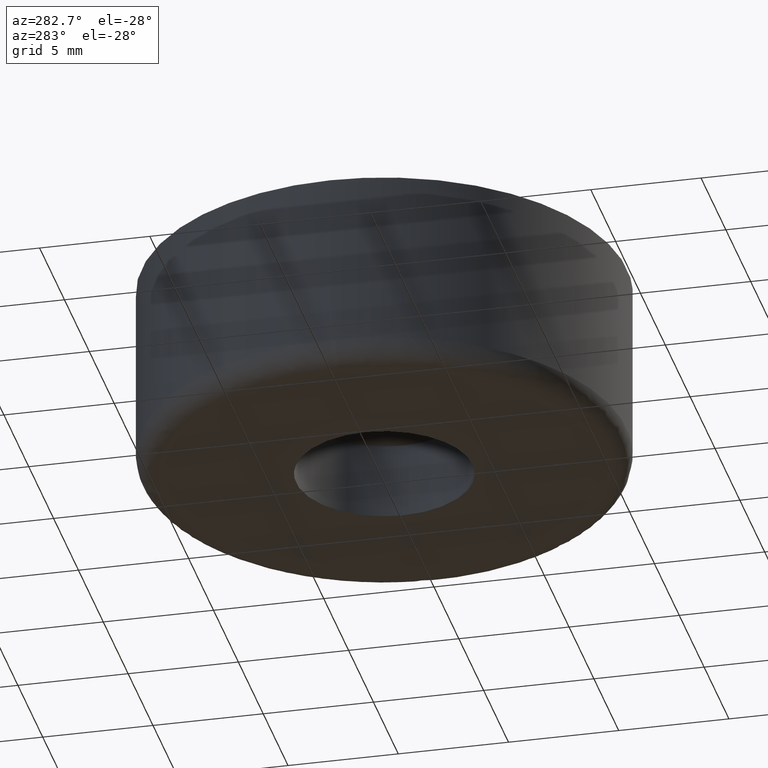
[diagram: clean part render]
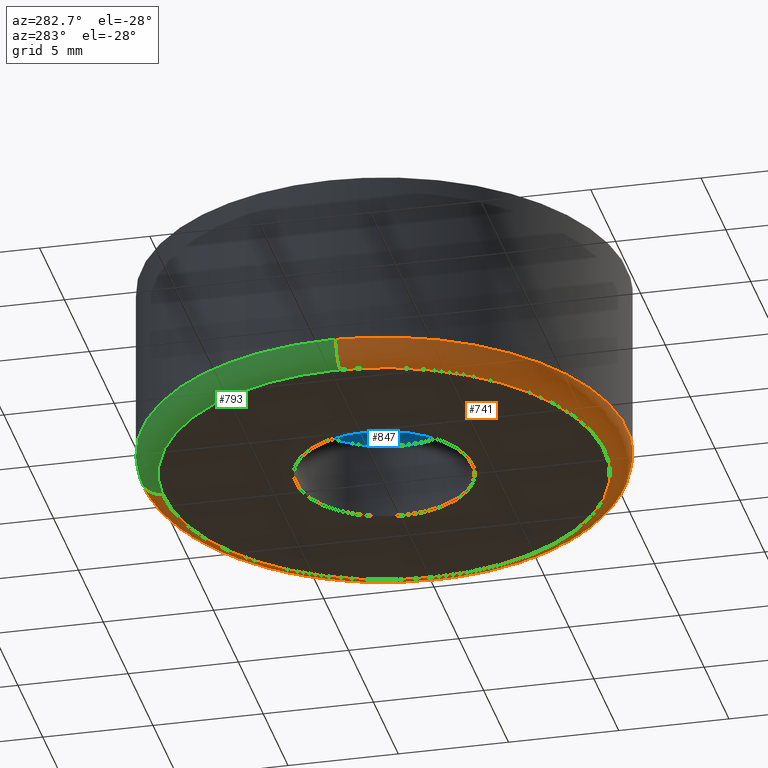
[diagram: same view with three faces highlighted in distinct colors, each labeled with its STEP entity id]
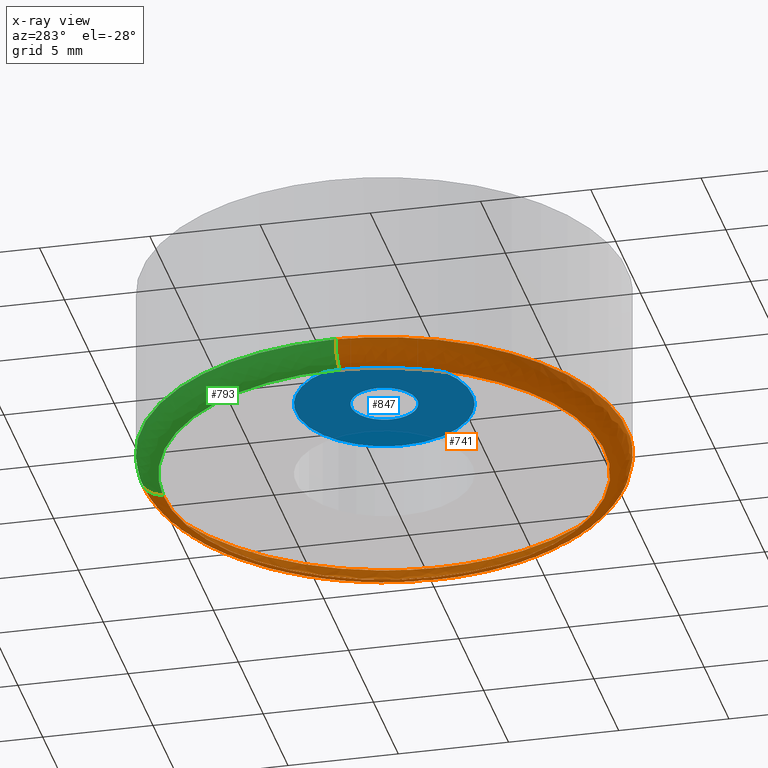
[diagram: x-ray of the same camera — body ghosted, the three highlighted faces saturated]
A machine part, auxiliary view with three faces highlighted in distinct colors.
The next image is the same camera in x-ray (body ghosted, the three faces saturated) — at least one of them is partly hidden behind the body in this view.
Their STEP definitions:

[orange] entity #741 — the highlighted face is a freeform B-spline surface patch.
#62=CARTESIAN_POINT('',(10.735658999564700,-2.397003513767527,0.999999999999981));
#63=VERTEX_POINT('',#62);
#64=CARTESIAN_POINT('',(0.863043667407032,-10.966091173618230,1.000000000000017));
#65=VERTEX_POINT('',#64);
#66=CARTESIAN_POINT('',(10.735658999564698,-2.397003513767527,0.999999999999981));
#67=CARTESIAN_POINT('',(8.964759803320055,-10.328477032398068,1.0));
#68=CARTESIAN_POINT('',(0.863043667407032,-10.966091173618224,1.000000000000017));
#76=(BOUNDED_CURVE()B_SPLINE_CURVE(2,(#66,#67,#68),.UNSPECIFIED.,.F.,.U.)B_SPLINE_CURVE_WITH_KNOTS((3,3),(0.537286560370751,0.736331400453952),.UNSPECIFIED.)CURVE()GEOMETRIC_REPRESENTATION_ITEM()RATIONAL_B_SPLINE_CURVE((0.925662740296602,0.762027680026814,0.969723564491107))REPRESENTATION_ITEM(''));
#77=EDGE_CURVE('',#63,#65,#76,.T.);
#135=CARTESIAN_POINT('',(11.0,0.0,1.0));
#136=VERTEX_POINT('',#135);
#137=CARTESIAN_POINT('',(11.0,0.0,1.0));
#138=CARTESIAN_POINT('',(11.000000000000005,-1.213077489482777,1.0));
#139=CARTESIAN_POINT('',(10.735658999564697,-2.397003513767527,0.999999999999981));
#147=(BOUNDED_CURVE()B_SPLINE_CURVE(2,(#137,#138,#139),.UNSPECIFIED.,.F.,.U.)B_SPLINE_CURVE_WITH_KNOTS((3,3),(0.500000000000000,0.537286560370751),.UNSPECIFIED.)CURVE()GEOMETRIC_REPRESENTATION_ITEM()RATIONAL_B_SPLINE_CURVE((1.0,0.956316077258115,0.925662740296602))REPRESENTATION_ITEM(''));
#148=EDGE_CURVE('',#136,#63,#147,.T.);
#150=CARTESIAN_POINT('',(-0.276431049877462,10.996526082116279,0.999999999897399));
#151=VERTEX_POINT('',#150);
#152=CARTESIAN_POINT('',(-0.276431049877462,10.996526082116279,0.999999999897399));
#153=CARTESIAN_POINT('',(-0.138237353357926,11.000000000000004,1.0));
#154=CARTESIAN_POINT('',(0.0,11.0,1.0));
#155=CARTESIAN_POINT('',(11.0,11.0,1.0));
#156=CARTESIAN_POINT('',(11.0,0.0,1.0));
#164=(BOUNDED_CURVE()B_SPLINE_CURVE(2,(#152,#153,#154,#155,#156),.UNSPECIFIED.,.F.,.U.)B_SPLINE_CURVE_WITH_KNOTS((3,2,3),(0.245579891769784,0.250000000000000,0.500000000000000),.UNSPECIFIED.)CURVE()GEOMETRIC_REPRESENTATION_ITEM()RATIONAL_B_SPLINE_CURVE((0.989826157681522,0.994821521091792,1.0,0.707106781186548,1.0))REPRESENTATION_ITEM(''));
#165=EDGE_CURVE('',#151,#136,#164,.T.);
#182=CARTESIAN_POINT('',(-10.996526082116279,-0.276431049877210,0.999999999897420));
#183=VERTEX_POINT('',#182);
#197=CARTESIAN_POINT('',(0.863043667407032,-10.966091173618224,1.000000000000017));
#198=CARTESIAN_POINT('',(0.432187969468142,-11.000000000000002,1.0));
#199=CARTESIAN_POINT('',(0.0,-11.0,1.0));
#200=CARTESIAN_POINT('',(-10.726956637986108,-11.000000000000004,1.0));
#201=CARTESIAN_POINT('',(-10.996526082116283,-0.276431049877210,0.999999999897420));
#209=(BOUNDED_CURVE()B_SPLINE_CURVE(2,(#197,#198,#199,#200,#201),.UNSPECIFIED.,.F.,.U.)B_SPLINE_CURVE_WITH_KNOTS((3,2,3),(0.736331400453952,0.750000000000000,0.995579891769791),.UNSPECIFIED.)CURVE()GEOMETRIC_REPRESENTATION_ITEM()RATIONAL_B_SPLINE_CURVE((0.969723564491107,0.983986239529144,1.0,0.712285260094747,0.989826157681538))REPRESENTATION_ITEM(''));
#210=EDGE_CURVE('',#65,#183,#209,.T.);
#644=CARTESIAN_POINT('',(-0.276369890915477,10.994093156753253,1.069724206937739));
#645=CARTESIAN_POINT('',(10.717723265837780,11.270463047668732,1.069724206937739));
#646=CARTESIAN_POINT('',(10.994093156753253,0.276369890915478,1.069724206937739));
#647=CARTESIAN_POINT('',(11.270463047668734,-10.717723265837776,1.069724206937739));
#648=CARTESIAN_POINT('',(0.276369890915481,-10.994093156753253,1.069724206937739));
#649=CARTESIAN_POINT('',(-10.717723265837776,-11.270463047668734,1.069724206937739));
#650=CARTESIAN_POINT('',(-10.994093156753253,-0.276369890915481,1.069724206937739));
#651=CARTESIAN_POINT('',(-0.278384645946548,11.074240832848719,-0.077336226805050));
#652=CARTESIAN_POINT('',(10.795856186902176,11.352625478795273,-0.077336226805050));
#653=CARTESIAN_POINT('',(11.074240832848719,0.278384645946549,-0.077336226805050));
#654=CARTESIAN_POINT('',(11.352625478795273,-10.795856186902171,-0.077336226805050));
#655=CARTESIAN_POINT('',(0.278384645946552,-11.074240832848719,-0.077336226805050));
#656=CARTESIAN_POINT('',(-10.795856186902171,-11.352625478795273,-0.077336226805050));
#657=CARTESIAN_POINT('',(-11.074240832848719,-0.278384645946552,-0.077336226805050));
#658=CARTESIAN_POINT('',(-0.249558156124175,9.927512752450511,0.002407681992349));
#659=CARTESIAN_POINT('',(9.677954596326334,10.177070908574683,0.002407681992349));
#660=CARTESIAN_POINT('',(9.927512752450511,0.249558156124176,0.002407681992349));
#661=CARTESIAN_POINT('',(10.177070908574688,-9.677954596326332,0.002407681992349));
#662=CARTESIAN_POINT('',(0.249558156124179,-9.927512752450511,0.002407681992349));
#663=CARTESIAN_POINT('',(-9.677954596326332,-10.177070908574688,0.002407681992349));
#664=CARTESIAN_POINT('',(-9.927512752450511,-0.249558156124179,0.002407681992349));
#672=(BOUNDED_SURFACE()B_SPLINE_SURFACE(2,2,((#644,#651,#658),(#645,#652,#659),(#646,#653,#660),(#647,#654,#661),(#648,#655,#662),(#649,#656,#663),(#650,#657,#664)),.UNSPECIFIED.,.F.,.F.,.U.)B_SPLINE_SURFACE_WITH_KNOTS((3,2,2,3),(3,3),(0.0,18.221364468253700,36.442728936507407,54.664093404761111),(0.0,1.822370918624830),.UNSPECIFIED.)GEOMETRIC_REPRESENTATION_ITEM()RATIONAL_B_SPLINE_SURFACE(((0.910892950627466,0.599412832290527,0.915966818727494),(0.644098582323704,0.423848878442866,0.647686348864080),(0.910892950627466,0.599412832290527,0.915966818727494),(0.644098582323704,0.423848878442866,0.647686348864080),(0.910892950627466,0.599412832290527,0.915966818727494),(0.644098582323704,0.423848878442866,0.647686348864080),(0.910892950627466,0.599412832290527,0.915966818727494)))REPRESENTATION_ITEM('')SURFACE());
#673=CARTESIAN_POINT('',(-0.251300954478001,9.996841893394862,1.718108E-016));
#674=VERTEX_POINT('',#673);
#675=CARTESIAN_POINT('',(10.0,0.0,0.0));
#676=VERTEX_POINT('',#675);
#677=CARTESIAN_POINT('',(-0.251300954478001,9.996841893394862,1.718108E-016));
#678=CARTESIAN_POINT('',(-0.125670321264293,10.000000000000002,0.0));
#679=CARTESIAN_POINT('',(0.0,10.0,0.0));
#680=CARTESIAN_POINT('',(10.000000000000002,10.000000000000002,0.0));
#681=CARTESIAN_POINT('',(10.0,0.0,0.0));
#689=(BOUNDED_CURVE()B_SPLINE_CURVE(2,(#677,#678,#679,#680,#681),.UNSPECIFIED.,.F.,.U.)B_SPLINE_CURVE_WITH_KNOTS((3,2,3),(0.245579891768740,0.250000000000000,0.500000000000000),.UNSPECIFIED.)CURVE()GEOMETRIC_REPRESENTATION_ITEM()RATIONAL_B_SPLINE_CURVE((0.989826157679164,0.994821521090570,1.0,0.707106781186548,1.0))REPRESENTATION_ITEM(''));
#690=EDGE_CURVE('',#674,#676,#689,.T.);
#691=ORIENTED_EDGE('',*,*,#690,.F.);
#692=CARTESIAN_POINT('',(-0.276431049877462,10.996526082116279,0.999999999897399));
#693=CARTESIAN_POINT('',(-0.276431049871556,10.996526081911156,1.125614E-009));
#694=CARTESIAN_POINT('',(-0.251300954478001,9.996841893394862,1.718108E-016));
#702=(BOUNDED_CURVE()B_SPLINE_CURVE(2,(#692,#693,#694),.UNSPECIFIED.,.F.,.U.)B_SPLINE_CURVE_WITH_KNOTS((3,3),(-1.723441281773494,-0.263586880092799),.UNSPECIFIED.)CURVE()GEOMETRIC_REPRESENTATION_ITEM()RATIONAL_B_SPLINE_CURVE((0.883897567064202,0.626638727480732,0.888510408644601))REPRESENTATION_ITEM(''));
#703=EDGE_CURVE('',#151,#674,#702,.T.);
#704=ORIENTED_EDGE('',*,*,#703,.F.);
#705=ORIENTED_EDGE('',*,*,#165,.T.);
#706=ORIENTED_EDGE('',*,*,#148,.T.);
#707=ORIENTED_EDGE('',*,*,#77,.T.);
#708=ORIENTED_EDGE('',*,*,#210,.T.);
#709=CARTESIAN_POINT('',(-9.996841893421046,-0.251300954480380,1.874299E-016));
#710=VERTEX_POINT('',#709);
#711=CARTESIAN_POINT('',(-10.996526082116283,-0.276431049877210,0.999999999897420));
#712=CARTESIAN_POINT('',(-10.996526081911201,-0.276431049871555,1.178090E-009));
#713=CARTESIAN_POINT('',(-9.996841893421046,-0.251300954480380,1.874299E-016));
#721=(BOUNDED_CURVE()B_SPLINE_CURVE(2,(#711,#712,#713),.UNSPECIFIED.,.F.,.U.)B_SPLINE_CURVE_WITH_KNOTS((3,3),(-1.723441281773539,-0.263586880147109),.UNSPECIFIED.)CURVE()GEOMETRIC_REPRESENTATION_ITEM()RATIONAL_B_SPLINE_CURVE((0.883897567064218,0.626638727490295,0.888510408625117))REPRESENTATION_ITEM(''));
#722=EDGE_CURVE('',#183,#710,#721,.T.);
#723=ORIENTED_EDGE('',*,*,#722,.T.);
#724=CARTESIAN_POINT('',(10.0,0.0,0.0));
#725=CARTESIAN_POINT('',(10.000000000000002,-10.000000000000002,0.0));
#726=CARTESIAN_POINT('',(0.0,-10.0,0.0));
#727=CARTESIAN_POINT('',(-9.751778761743656,-10.0,0.0));
#728=CARTESIAN_POINT('',(-9.996841893421046,-0.251300954480380,1.874299E-016));
#736=(BOUNDED_CURVE()B_SPLINE_CURVE(2,(#724,#725,#726,#727,#728),.UNSPECIFIED.,.F.,.U.)B_SPLINE_CURVE_WITH_KNOTS((3,2,3),(0.500000000000000,0.750000000000000,0.995579891768680),.UNSPECIFIED.)CURVE()GEOMETRIC_REPRESENTATION_ITEM()RATIONAL_B_SPLINE_CURVE((1.0,0.707106781186548,1.0,0.712285260096048,0.989826157679029))REPRESENTATION_ITEM(''));
#737=EDGE_CURVE('',#676,#710,#736,.T.);
#738=ORIENTED_EDGE('',*,*,#737,.F.);
#739=EDGE_LOOP('',(#691,#704,#705,#706,#707,#708,#723,#738));
#740=FACE_OUTER_BOUND('',#739,.T.);
#741=ADVANCED_FACE('',(#740),#672,.T.);

[blue] entity #847 — the highlighted face is a freeform B-spline surface patch.
#305=CARTESIAN_POINT('',(-0.177049180233215,1.489514547687925,3.500000000000001));
#306=VERTEX_POINT('',#305);
#312=CARTESIAN_POINT('',(1.500000000000000,0.0,3.500000000000000));
#313=VERTEX_POINT('',#312);
#314=CARTESIAN_POINT('',(-0.177049180233215,1.489514547687925,3.500000000000000));
#315=CARTESIAN_POINT('',(-0.088835082122399,1.500000000000000,3.500000000000000));
#316=CARTESIAN_POINT('',(0.0,1.500000000000000,3.500000000000000));
#317=CARTESIAN_POINT('',(1.500000000000000,1.500000000000000,3.499999999999999));
#318=CARTESIAN_POINT('',(1.500000000000000,0.0,3.500000000000000));
#326=(BOUNDED_CURVE()B_SPLINE_CURVE(2,(#314,#315,#316,#317,#318),.UNSPECIFIED.,.F.,.U.)B_SPLINE_CURVE_WITH_KNOTS((3,2,3),(0.229562719926951,0.250000000000000,0.500000000000000),.UNSPECIFIED.)CURVE()GEOMETRIC_REPRESENTATION_ITEM()RATIONAL_B_SPLINE_CURVE((0.956027237164700,0.976056237022451,1.0,0.707106781186548,1.0))REPRESENTATION_ITEM(''));
#327=EDGE_CURVE('',#306,#313,#326,.T.);
#329=CARTESIAN_POINT('',(0.091572809312635,-1.497202197632167,3.500000000000000));
#330=VERTEX_POINT('',#329);
#331=CARTESIAN_POINT('',(1.500000000000000,0.0,3.500000000000000));
#332=CARTESIAN_POINT('',(1.500000000000001,-1.411059100338994,3.500000000000000));
#333=CARTESIAN_POINT('',(0.091572809312635,-1.497202197632167,3.500000000000000));
#341=(BOUNDED_CURVE()B_SPLINE_CURVE(2,(#331,#332,#333),.UNSPECIFIED.,.F.,.U.)B_SPLINE_CURVE_WITH_KNOTS((3,3),(0.500000000000000,0.739332962239582),.UNSPECIFIED.)CURVE()GEOMETRIC_REPRESENTATION_ITEM()RATIONAL_B_SPLINE_CURVE((1.0,0.719603993285961,0.976072041668088))REPRESENTATION_ITEM(''));
#342=EDGE_CURVE('',#313,#330,#341,.T.);
#420=CARTESIAN_POINT('',(-1.500000000000000,0.0,3.500000000000000));
#421=VERTEX_POINT('',#420);
#422=CARTESIAN_POINT('',(0.091572809312635,-1.497202197632167,3.500000000000000));
#423=CARTESIAN_POINT('',(0.045829144958262,-1.500000000000001,3.500000000000000));
#424=CARTESIAN_POINT('',(0.0,-1.500000000000000,3.500000000000000));
#425=CARTESIAN_POINT('',(-1.500000000000000,-1.500000000000000,3.499999999999999));
#426=CARTESIAN_POINT('',(-1.500000000000000,0.0,3.500000000000000));
#434=(BOUNDED_CURVE()B_SPLINE_CURVE(2,(#422,#423,#424,#425,#426),.UNSPECIFIED.,.F.,.U.)B_SPLINE_CURVE_WITH_KNOTS((3,2,3),(0.739332962239583,0.750000000000000,1.0),.UNSPECIFIED.)CURVE()GEOMETRIC_REPRESENTATION_ITEM()RATIONAL_B_SPLINE_CURVE((0.976072041668089,0.987502787900587,1.0,0.707106781186548,1.0))REPRESENTATION_ITEM(''));
#435=EDGE_CURVE('',#330,#421,#434,.T.);
#437=CARTESIAN_POINT('',(-1.500000000000000,0.0,3.500000000000000));
#438=CARTESIAN_POINT('',(-1.500000000000000,1.332263745075924,3.500000000000000));
#439=CARTESIAN_POINT('',(-0.177049180233215,1.489514547687925,3.500000000000000));
#447=(BOUNDED_CURVE()B_SPLINE_CURVE(2,(#437,#438,#439),.UNSPECIFIED.,.F.,.U.)B_SPLINE_CURVE_WITH_KNOTS((3,3),(0.0,0.229562719926951),.UNSPECIFIED.)CURVE()GEOMETRIC_REPRESENTATION_ITEM()RATIONAL_B_SPLINE_CURVE((1.0,0.731050544164097,0.956027237164700))REPRESENTATION_ITEM(''));
#448=EDGE_CURVE('',#421,#306,#447,.T.);
#514=CARTESIAN_POINT('',(0.244188342415201,-3.992539549383896,3.500000000000000));
#515=VERTEX_POINT('',#514);
#521=CARTESIAN_POINT('',(4.0,0.0,3.500000000000000));
#522=VERTEX_POINT('',#521);
#523=CARTESIAN_POINT('',(4.0,0.0,3.500000000000000));
#524=CARTESIAN_POINT('',(4.000000000000001,-3.762829758978972,3.500000000000000));
#525=CARTESIAN_POINT('',(0.244188342415201,-3.992539549383895,3.500000000000000));
#533=(BOUNDED_CURVE()B_SPLINE_CURVE(2,(#523,#524,#525),.UNSPECIFIED.,.F.,.U.)B_SPLINE_CURVE_WITH_KNOTS((3,3),(0.500000000000000,0.739333213581951),.UNSPECIFIED.)CURVE()GEOMETRIC_REPRESENTATION_ITEM()RATIONAL_B_SPLINE_CURVE((1.0,0.719603698820059,0.976072580343222))REPRESENTATION_ITEM(''));
#534=EDGE_CURVE('',#522,#515,#533,.T.);
#536=CARTESIAN_POINT('',(-0.472135428042880,3.972038285009908,3.500000000000000));
#537=VERTEX_POINT('',#536);
#538=CARTESIAN_POINT('',(-0.472135428042880,3.972038285009907,3.500000000000000));
#539=CARTESIAN_POINT('',(-0.236895715330755,4.0,3.500000000000000));
#540=CARTESIAN_POINT('',(0.0,4.0,3.500000000000000));
#541=CARTESIAN_POINT('',(4.000000000000000,4.000000000000000,3.499999999999999));
#542=CARTESIAN_POINT('',(4.0,0.0,3.500000000000000));
#550=(BOUNDED_CURVE()B_SPLINE_CURVE(2,(#538,#539,#540,#541,#542),.UNSPECIFIED.,.F.,.U.)B_SPLINE_CURVE_WITH_KNOTS((3,2,3),(0.229562537788350,0.250000000000000,0.500000000000000),.UNSPECIFIED.)CURVE()GEOMETRIC_REPRESENTATION_ITEM()RATIONAL_B_SPLINE_CURVE((0.956026880165058,0.976056023633806,1.0,0.707106781186548,1.0))REPRESENTATION_ITEM(''));
#551=EDGE_CURVE('',#537,#522,#550,.T.);
#595=CARTESIAN_POINT('',(-4.0,0.0,3.500000000000000));
#596=VERTEX_POINT('',#595);
#597=CARTESIAN_POINT('',(-4.0,0.0,3.500000000000000));
#598=CARTESIAN_POINT('',(-4.0,3.552699464424252,3.500000000000000));
#599=CARTESIAN_POINT('',(-0.472135428042880,3.972038285009907,3.500000000000000));
#607=(BOUNDED_CURVE()B_SPLINE_CURVE(2,(#597,#598,#599),.UNSPECIFIED.,.F.,.U.)B_SPLINE_CURVE_WITH_KNOTS((3,3),(0.0,0.229562537788350),.UNSPECIFIED.)CURVE()GEOMETRIC_REPRESENTATION_ITEM()RATIONAL_B_SPLINE_CURVE((1.0,0.731050757552741,0.956026880165058))REPRESENTATION_ITEM(''));
#608=EDGE_CURVE('',#596,#537,#607,.T.);
#610=CARTESIAN_POINT('',(0.244188342415201,-3.992539549383895,3.500000000000000));
#611=CARTESIAN_POINT('',(0.122208137179204,-4.000000000000001,3.500000000000000));
#612=CARTESIAN_POINT('',(0.0,-4.0,3.500000000000000));
#613=CARTESIAN_POINT('',(-4.000000000000000,-4.000000000000000,3.499999999999999));
#614=CARTESIAN_POINT('',(-4.0,0.0,3.500000000000000));
#622=(BOUNDED_CURVE()B_SPLINE_CURVE(2,(#610,#611,#612,#613,#614),.UNSPECIFIED.,.F.,.U.)B_SPLINE_CURVE_WITH_KNOTS((3,2,3),(0.739333213581951,0.750000000000000,1.0),.UNSPECIFIED.)CURVE()GEOMETRIC_REPRESENTATION_ITEM()RATIONAL_B_SPLINE_CURVE((0.976072580343222,0.987503082366489,1.0,0.707106781186548,1.0))REPRESENTATION_ITEM(''));
#623=EDGE_CURVE('',#515,#596,#622,.T.);
#830=CARTESIAN_POINT('',(-4.399599984494448,-4.399502853344670,3.500000000000000));
#831=CARTESIAN_POINT('',(4.399600199071169,-4.399502853344670,3.500000000000000));
#832=CARTESIAN_POINT('',(-4.399599984494448,4.399527243565313,3.500000000000000));
#833=CARTESIAN_POINT('',(4.399600199071169,4.399527243565313,3.500000000000000));
#834=B_SPLINE_SURFACE_WITH_KNOTS('',1,1,((#830,#832),(#831,#833)),.UNSPECIFIED.,.F.,.F.,.U.,(2,2),(2,2),(0.0,8.799200183565617),(0.0,8.799030096909982),.UNSPECIFIED.);
#835=ORIENTED_EDGE('',*,*,#608,.T.);
#836=ORIENTED_EDGE('',*,*,#551,.T.);
#837=ORIENTED_EDGE('',*,*,#534,.T.);
#838=ORIENTED_EDGE('',*,*,#623,.T.);
#839=EDGE_LOOP('',(#835,#836,#837,#838));
#840=FACE_OUTER_BOUND('',#839,.T.);
#841=ORIENTED_EDGE('',*,*,#342,.F.);
#842=ORIENTED_EDGE('',*,*,#327,.F.);
#843=ORIENTED_EDGE('',*,*,#448,.F.);
#844=ORIENTED_EDGE('',*,*,#435,.F.);
#845=EDGE_LOOP('',(#841,#842,#843,#844));
#846=FACE_BOUND('',#845,.T.);
#847=ADVANCED_FACE('',(#840,#846),#834,.F.);

[green] entity #793 — the highlighted face is a freeform B-spline surface patch.
#150=CARTESIAN_POINT('',(-0.276431049877462,10.996526082116279,0.999999999897399));
#151=VERTEX_POINT('',#150);
#167=CARTESIAN_POINT('',(-11.0,0.0,1.0));
#168=VERTEX_POINT('',#167);
#169=CARTESIAN_POINT('',(-11.0,0.0,1.0));
#170=CARTESIAN_POINT('',(-11.0,10.726956637985680,1.0));
#171=CARTESIAN_POINT('',(-0.276431049877462,10.996526082116279,0.999999999897399));
#179=(BOUNDED_CURVE()B_SPLINE_CURVE(2,(#169,#170,#171),.UNSPECIFIED.,.F.,.U.)B_SPLINE_CURVE_WITH_KNOTS((3,3),(0.0,0.245579891769784),.UNSPECIFIED.)CURVE()GEOMETRIC_REPRESENTATION_ITEM()RATIONAL_B_SPLINE_CURVE((1.0,0.712285260094755,0.989826157681522))REPRESENTATION_ITEM(''));
#180=EDGE_CURVE('',#168,#151,#179,.T.);
#182=CARTESIAN_POINT('',(-10.996526082116279,-0.276431049877210,0.999999999897420));
#183=VERTEX_POINT('',#182);
#184=CARTESIAN_POINT('',(-10.996526082116281,-0.276431049877210,0.999999999897420));
#185=CARTESIAN_POINT('',(-11.0,-0.138237353357674,1.0));
#186=CARTESIAN_POINT('',(-11.0,0.0,1.0));
#194=(BOUNDED_CURVE()B_SPLINE_CURVE(2,(#184,#185,#186),.UNSPECIFIED.,.F.,.U.)B_SPLINE_CURVE_WITH_KNOTS((3,3),(0.995579891769792,1.0),.UNSPECIFIED.)CURVE()GEOMETRIC_REPRESENTATION_ITEM()RATIONAL_B_SPLINE_CURVE((0.989826157681540,0.994821521091802,1.0))REPRESENTATION_ITEM(''));
#195=EDGE_CURVE('',#183,#168,#194,.T.);
#673=CARTESIAN_POINT('',(-0.251300954478001,9.996841893394862,1.718108E-016));
#674=VERTEX_POINT('',#673);
#692=CARTESIAN_POINT('',(-0.276431049877462,10.996526082116279,0.999999999897399));
#693=CARTESIAN_POINT('',(-0.276431049871556,10.996526081911156,1.125614E-009));
#694=CARTESIAN_POINT('',(-0.251300954478001,9.996841893394862,1.718108E-016));
#702=(BOUNDED_CURVE()B_SPLINE_CURVE(2,(#692,#693,#694),.UNSPECIFIED.,.F.,.U.)B_SPLINE_CURVE_WITH_KNOTS((3,3),(-1.723441281773494,-0.263586880092799),.UNSPECIFIED.)CURVE()GEOMETRIC_REPRESENTATION_ITEM()RATIONAL_B_SPLINE_CURVE((0.883897567064202,0.626638727480732,0.888510408644601))REPRESENTATION_ITEM(''));
#703=EDGE_CURVE('',#151,#674,#702,.T.);
#709=CARTESIAN_POINT('',(-9.996841893421046,-0.251300954480380,1.874299E-016));
#710=VERTEX_POINT('',#709);
#711=CARTESIAN_POINT('',(-10.996526082116283,-0.276431049877210,0.999999999897420));
#712=CARTESIAN_POINT('',(-10.996526081911201,-0.276431049871555,1.178090E-009));
#713=CARTESIAN_POINT('',(-9.996841893421046,-0.251300954480380,1.874299E-016));
#721=(BOUNDED_CURVE()B_SPLINE_CURVE(2,(#711,#712,#713),.UNSPECIFIED.,.F.,.U.)B_SPLINE_CURVE_WITH_KNOTS((3,3),(-1.723441281773539,-0.263586880147109),.UNSPECIFIED.)CURVE()GEOMETRIC_REPRESENTATION_ITEM()RATIONAL_B_SPLINE_CURVE((0.883897567064218,0.626638727490295,0.888510408625117))REPRESENTATION_ITEM(''));
#722=EDGE_CURVE('',#183,#710,#721,.T.);
#742=CARTESIAN_POINT('',(-10.994093156753253,-0.276369890915476,1.069724206937739));
#743=CARTESIAN_POINT('',(-11.270463047668732,10.717723265837783,1.069724206937739));
#744=CARTESIAN_POINT('',(-0.276369890915477,10.994093156753253,1.069724206937739));
#745=CARTESIAN_POINT('',(-11.074240832848719,-0.278384645946547,-0.077336226805050));
#746=CARTESIAN_POINT('',(-11.352625478795270,10.795856186902176,-0.077336226805050));
#747=CARTESIAN_POINT('',(-0.278384645946548,11.074240832848719,-0.077336226805050));
#748=CARTESIAN_POINT('',(-9.927512752450511,-0.249558156124175,0.002407681992349));
#749=CARTESIAN_POINT('',(-10.177070908574683,9.677954596326334,0.002407681992349));
#750=CARTESIAN_POINT('',(-0.249558156124175,9.927512752450511,0.002407681992349));
#758=(BOUNDED_SURFACE()B_SPLINE_SURFACE(2,2,((#742,#745,#748),(#743,#746,#749),(#744,#747,#750)),.UNSPECIFIED.,.F.,.F.,.U.)B_SPLINE_SURFACE_WITH_KNOTS((3,3),(3,3),(0.0,18.221364468253700),(0.0,1.822370918624830),.UNSPECIFIED.)GEOMETRIC_REPRESENTATION_ITEM()RATIONAL_B_SPLINE_SURFACE(((0.910892950627466,0.599412832290527,0.915966818727494),(0.644098582323704,0.423848878442866,0.647686348864080),(0.910892950627466,0.599412832290527,0.915966818727494)))REPRESENTATION_ITEM('')SURFACE());
#759=CARTESIAN_POINT('',(-10.0,0.0,0.0));
#760=VERTEX_POINT('',#759);
#761=CARTESIAN_POINT('',(-10.0,0.0,0.0));
#762=CARTESIAN_POINT('',(-10.0,9.751778761746998,0.0));
#763=CARTESIAN_POINT('',(-0.251300954478001,9.996841893394862,1.718108E-016));
#771=(BOUNDED_CURVE()B_SPLINE_CURVE(2,(#761,#762,#763),.UNSPECIFIED.,.F.,.U.)B_SPLINE_CURVE_WITH_KNOTS((3,3),(0.0,0.245579891768740),.UNSPECIFIED.)CURVE()GEOMETRIC_REPRESENTATION_ITEM()RATIONAL_B_SPLINE_CURVE((1.0,0.712285260095977,0.989826157679164))REPRESENTATION_ITEM(''));
#772=EDGE_CURVE('',#760,#674,#771,.T.);
#773=ORIENTED_EDGE('',*,*,#772,.F.);
#774=CARTESIAN_POINT('',(-9.996841893421046,-0.251300954480380,1.874299E-016));
#775=CARTESIAN_POINT('',(-9.999999999999998,-0.125670321266014,0.0));
#776=CARTESIAN_POINT('',(-10.0,0.0,0.0));
#784=(BOUNDED_CURVE()B_SPLINE_CURVE(2,(#774,#775,#776),.UNSPECIFIED.,.F.,.U.)B_SPLINE_CURVE_WITH_KNOTS((3,3),(0.995579891768680,1.0),.UNSPECIFIED.)CURVE()GEOMETRIC_REPRESENTATION_ITEM()RATIONAL_B_SPLINE_CURVE((0.989826157679028,0.994821521090500,1.0))REPRESENTATION_ITEM(''));
#785=EDGE_CURVE('',#710,#760,#784,.T.);
#786=ORIENTED_EDGE('',*,*,#785,.F.);
#787=ORIENTED_EDGE('',*,*,#722,.F.);
#788=ORIENTED_EDGE('',*,*,#195,.T.);
#789=ORIENTED_EDGE('',*,*,#180,.T.);
#790=ORIENTED_EDGE('',*,*,#703,.T.);
#791=EDGE_LOOP('',(#773,#786,#787,#788,#789,#790));
#792=FACE_OUTER_BOUND('',#791,.T.);
#793=ADVANCED_FACE('',(#792),#758,.T.);